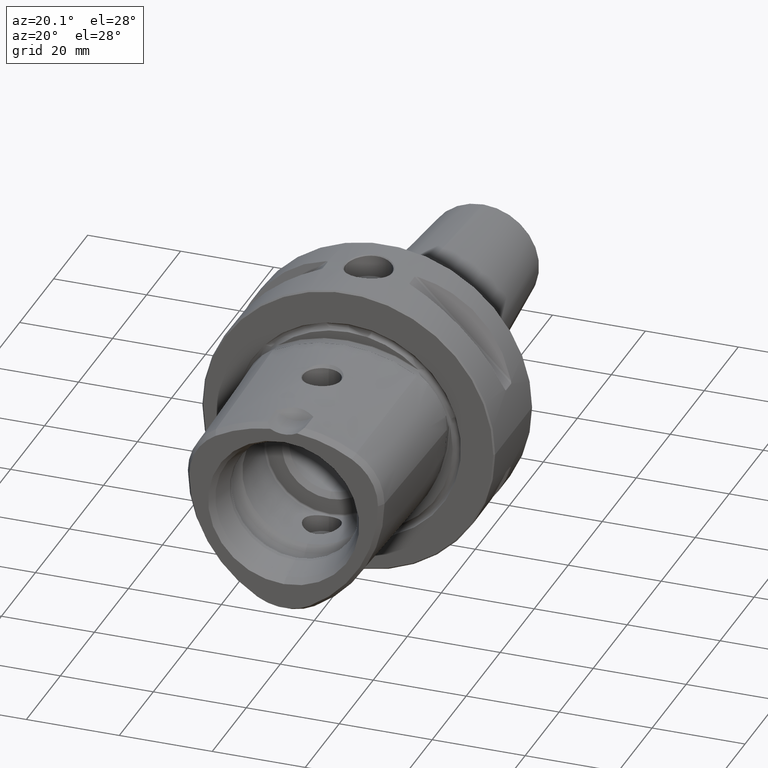
[diagram: clean part render]
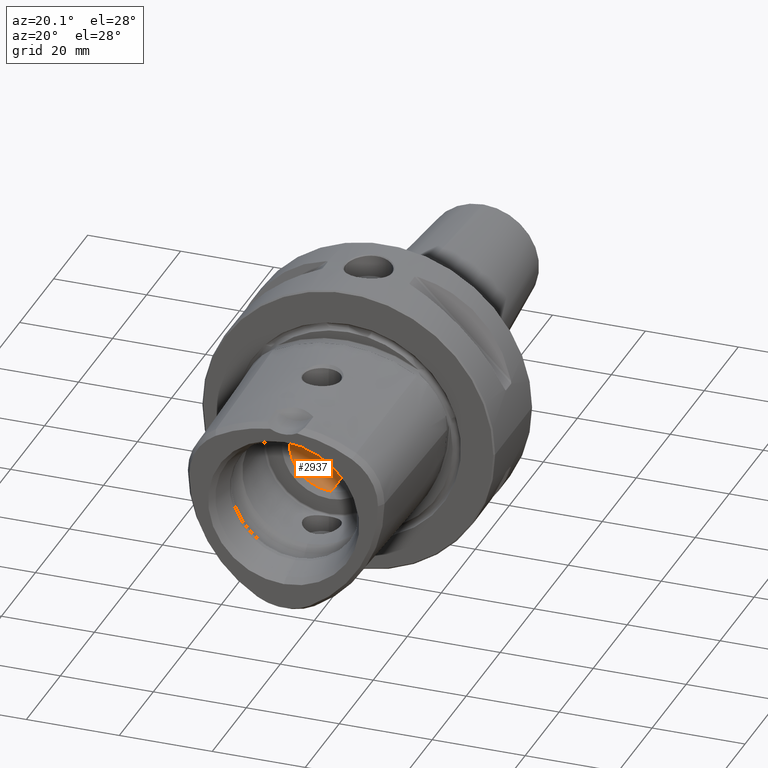
[diagram: same view with one face highlighted and labeled with its STEP entity id]
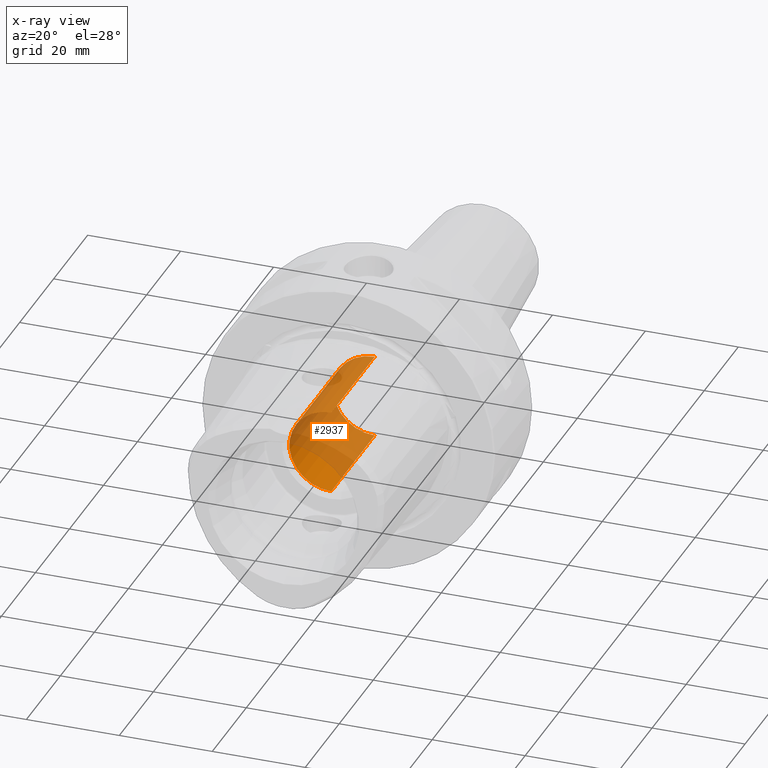
[diagram: x-ray of the same camera — body ghosted, the highlighted face saturated]
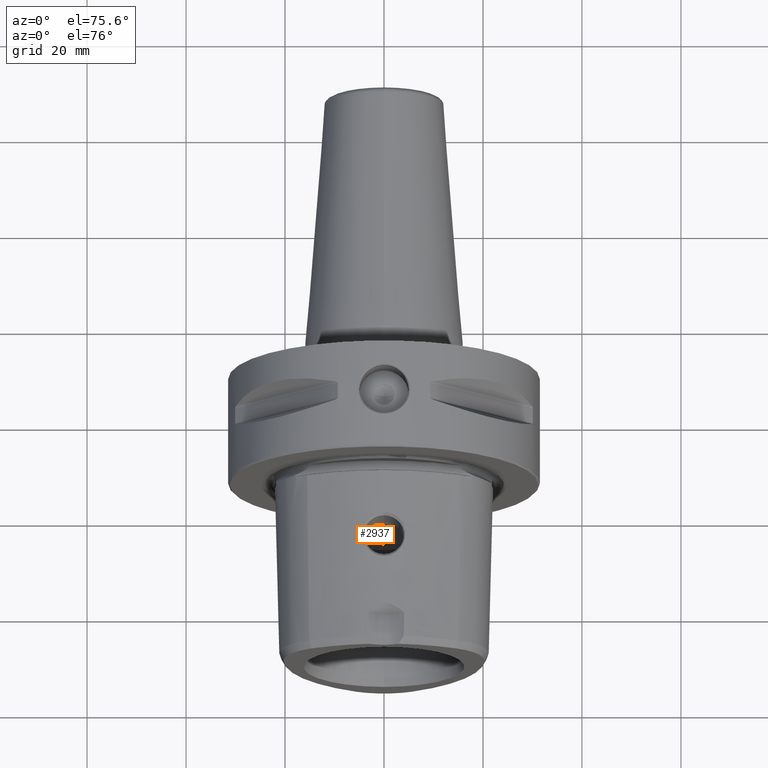
[diagram: same view with one face highlighted and labeled with its STEP entity id]
A machine part, auxiliary view. The second image highlights one B-rep face of the part: STEP entity #2937.
The next image is the same camera in x-ray: the body ghosted, the highlighted face saturated — about 78% of this face is hidden behind the body in this view.
A second angle (auxiliary view) of the same face is appended — the face is thin or edge-on in the first view.
In plain terms, the highlighted cylindrical surface (partial cylindrical patch) has radius 9 mm, axis along (0, 1, 0).
Its self-contained STEP definition (entity closure, byte-faithful):
#1034=DIRECTION('',(0.E0,1.E0,0.E0));
#1035=VECTOR('',#1034,2.554084126503E1);
#1036=CARTESIAN_POINT('',(0.E0,-1.004084126503E1,-9.E0));
#1037=LINE('',#1036,#1035);
#1038=DIRECTION('',(0.E0,1.E0,0.E0));
#1039=VECTOR('',#1038,2.554084126503E1);
#1040=CARTESIAN_POINT('',(0.E0,-1.004084126503E1,9.E0));
#1041=LINE('',#1040,#1039);
#1047=CARTESIAN_POINT('',(0.E0,-1.004084126503E1,0.E0));
#1048=DIRECTION('',(0.E0,1.E0,0.E0));
#1049=DIRECTION('',(0.E0,0.E0,-1.E0));
#1050=AXIS2_PLACEMENT_3D('',#1047,#1048,#1049);
#1052=CARTESIAN_POINT('',(0.E0,1.55E1,0.E0));
#1053=DIRECTION('',(0.E0,1.E0,0.E0));
#1054=DIRECTION('',(0.E0,0.E0,-1.E0));
#1055=AXIS2_PLACEMENT_3D('',#1052,#1053,#1054);
#1930=CARTESIAN_POINT('',(0.E0,-1.004084126503E1,-9.E0));
#1931=CARTESIAN_POINT('',(0.E0,1.55E1,-9.E0));
#1932=VERTEX_POINT('',#1930);
#1933=VERTEX_POINT('',#1931);
#1936=CARTESIAN_POINT('',(0.E0,-1.004084126503E1,9.E0));
#1937=CARTESIAN_POINT('',(0.E0,1.55E1,9.E0));
#1938=VERTEX_POINT('',#1936);
#1939=VERTEX_POINT('',#1937);
#2925=CARTESIAN_POINT('',(0.E0,-1.253483844617E1,0.E0));
#2926=DIRECTION('',(0.E0,1.E0,0.E0));
#2927=DIRECTION('',(0.E0,0.E0,-1.E0));
#2928=AXIS2_PLACEMENT_3D('',#2925,#2926,#2927);
#2929=CYLINDRICAL_SURFACE('',#2928,9.E0);
#2930=ORIENTED_EDGE('',*,*,#2915,.F.);
#2931=ORIENTED_EDGE('',*,*,#2890,.T.);
#2932=ORIENTED_EDGE('',*,*,#2919,.T.);
#2934=ORIENTED_EDGE('',*,*,#2933,.F.);
#2935=EDGE_LOOP('',(#2930,#2931,#2932,#2934));
#2936=FACE_OUTER_BOUND('',#2935,.F.);
#2937=ADVANCED_FACE('',(#2936),#2929,.F.);
#1051=CIRCLE('',#1050,9.E0);
#1056=CIRCLE('',#1055,9.E0);
#2890=EDGE_CURVE('',#1932,#1938,#1051,.T.);
#2915=EDGE_CURVE('',#1932,#1933,#1037,.T.);
#2919=EDGE_CURVE('',#1938,#1939,#1041,.T.);
#2933=EDGE_CURVE('',#1933,#1939,#1056,.T.);